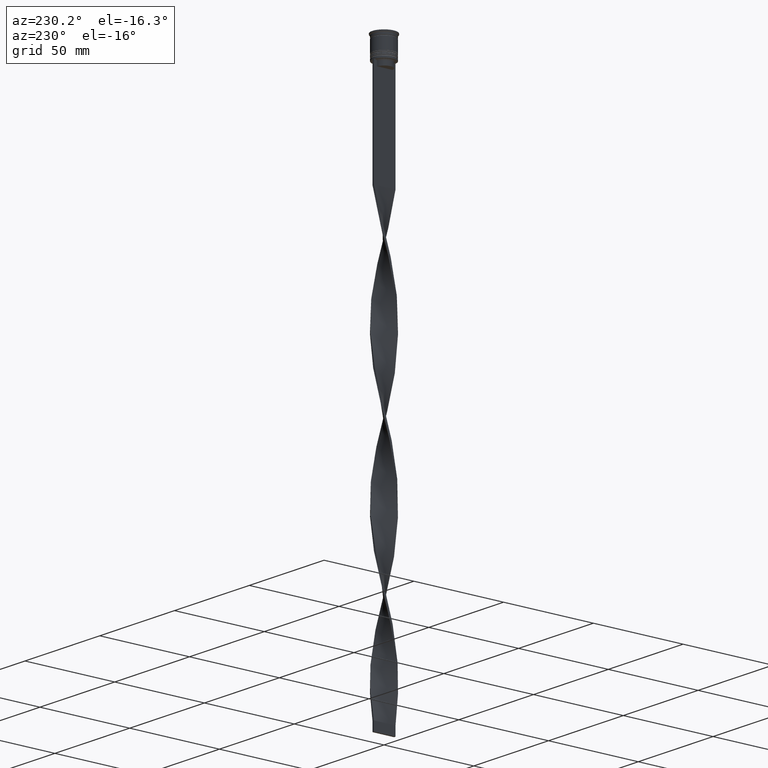
[diagram: clean part render]
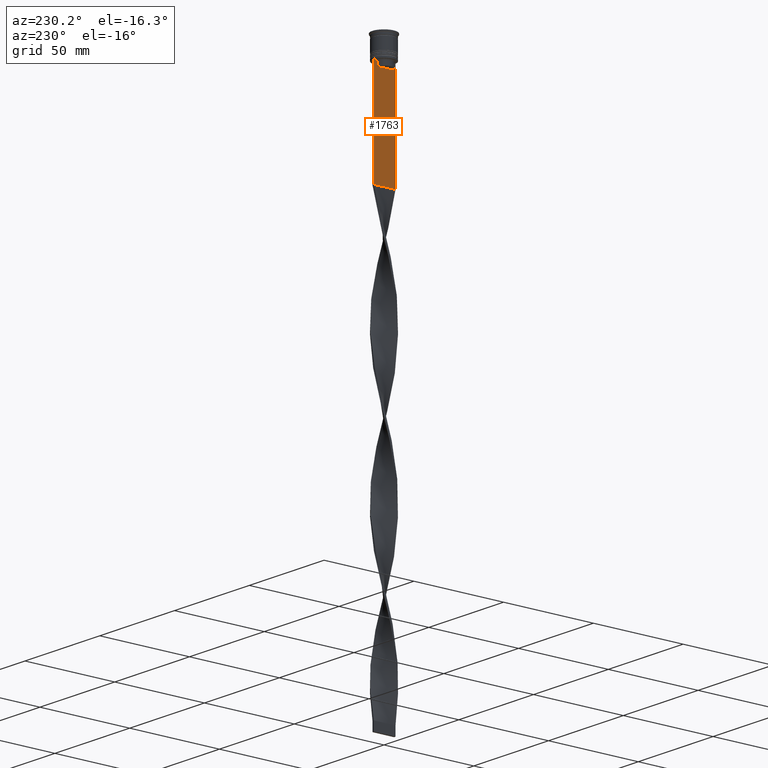
[diagram: same view with one face highlighted and labeled with its STEP entity id]
A machine part, auxiliary view. The second image highlights one B-rep face of the part: STEP entity #1763.
In plain terms, the highlighted planar face has unit normal (-1, 0, 0).
Its self-contained STEP definition (entity closure, byte-faithful):
#44 = LINE ( 'NONE', #3561, #3967 ) ;
#169 = ORIENTED_EDGE ( 'NONE', *, *, #1968, .F. ) ;
#179 = DIRECTION ( 'NONE',  ( 0.000000000000000000, 0.000000000000000000, 1.000000000000000000 ) ) ;
#218 = CARTESIAN_POINT ( 'NONE',  ( -0.4999999999999997780, -6.000000000000000000, -12.50000000000000000 ) ) ;
#278 = LINE ( 'NONE', #1231, #2730 ) ;
#308 = EDGE_CURVE ( 'NONE', #1701, #1156, #381, .T. ) ;
#310 = CARTESIAN_POINT ( 'NONE',  ( -0.4999999999999997780, -6.000000000000000000, -12.50000000000000000 ) ) ;
#381 = LINE ( 'NONE', #2617, #583 ) ;
#383 = EDGE_CURVE ( 'NONE', #2780, #1393, #44, .T. ) ;
#396 = VECTOR ( 'NONE', #450, 1000.000000000000000 ) ;
#429 = LINE ( 'NONE', #1076, #396 ) ;
#450 = DIRECTION ( 'NONE',  ( 0.000000000000000000, 1.000000000000000000, 0.000000000000000000 ) ) ;
#509 = EDGE_CURVE ( 'NONE', #1971, #3589, #1305, .T. ) ;
#583 = VECTOR ( 'NONE', #3873, 1000.000000000000000 ) ;
#663 = VECTOR ( 'NONE', #2156, 1000.000000000000000 ) ;
#666 = ORIENTED_EDGE ( 'NONE', *, *, #509, .T. ) ;
#734 = LINE ( 'NONE', #3536, #3659 ) ;
#925 = VECTOR ( 'NONE', #2134, 1000.000000000000000 ) ;
#1053 = VERTEX_POINT ( 'NONE', #2682 ) ;
#1076 = CARTESIAN_POINT ( 'NONE',  ( -0.4999999999999997780, -6.000000000000000000, -68.50000000000000000 ) ) ;
#1087 = LINE ( 'NONE', #3576, #2339 ) ;
#1156 = VERTEX_POINT ( 'NONE', #4012 ) ;
#1166 = LINE ( 'NONE', #2443, #925 ) ;
#1201 = EDGE_CURVE ( 'NONE', #3729, #2780, #1166, .T. ) ;
#1227 = ORIENTED_EDGE ( 'NONE', *, *, #3991, .F. ) ;
#1231 = CARTESIAN_POINT ( 'NONE',  ( -0.4999999999999997780, -6.000000000000000000, -0.4584054212077061097 ) ) ;
#1305 = LINE ( 'NONE', #1698, #2252 ) ;
#1362 = CARTESIAN_POINT ( 'NONE',  ( -0.4999999999999997780, -4.874423042781576676, -12.50000000000000000 ) ) ;
#1383 = CARTESIAN_POINT ( 'NONE',  ( -0.4999999999999997780, -4.539195586926424220, -12.83338928448044136 ) ) ;
#1393 = VERTEX_POINT ( 'NONE', #3882 ) ;
#1395 = CARTESIAN_POINT ( 'NONE',  ( -0.4999999999999997780, 6.000000000000000888, -68.50000000000000000 ) ) ;
#1524 = DIRECTION ( 'NONE',  ( 0.000000000000000000, 0.000000000000000000, -1.000000000000000000 ) ) ;
#1558 = ORIENTED_EDGE ( 'NONE', *, *, #308, .F. ) ;
#1628 = EDGE_CURVE ( 'NONE', #4087, #3589, #429, .T. ) ;
#1639 = ORIENTED_EDGE ( 'NONE', *, *, #1684, .F. ) ;
#1643 = ORIENTED_EDGE ( 'NONE', *, *, #1628, .F. ) ;
#1654 = CARTESIAN_POINT ( 'NONE',  ( -0.4999999999999997780, 4.371498598878878816, -13.00000000000000178 ) ) ;
#1684 = EDGE_CURVE ( 'NONE', #1053, #2898, #2769, .T. ) ;
#1698 = CARTESIAN_POINT ( 'NONE',  ( -0.4999999999999997780, 6.000000000000000888, -0.4584054212077061097 ) ) ;
#1701 = VERTEX_POINT ( 'NONE', #3919 ) ;
#1703 = CARTESIAN_POINT ( 'NONE',  ( -0.4999999999999997780, -6.000000000000000000, -12.50000000000000000 ) ) ;
#1715 = CARTESIAN_POINT ( 'NONE',  ( -0.4999999999999997780, -4.706831372970964544, -12.66671687695981596 ) ) ;
#1763 = ADVANCED_FACE ( 'NONE', ( #3355 ), #3033, .T. ) ;
#1834 = CARTESIAN_POINT ( 'NONE',  ( -0.4999999999999997780, -6.000000000000000000, -0.4584054212077061097 ) ) ;
#1879 = EDGE_CURVE ( 'NONE', #1971, #1701, #2389, .T. ) ;
#1892 = LINE ( 'NONE', #310, #1924 ) ;
#1894 = CARTESIAN_POINT ( 'NONE',  ( -0.4999999999999997780, 4.371498598878878816, -15.50000000000000000 ) ) ;
#1924 = VECTOR ( 'NONE', #1960, 1000.000000000000000 ) ;
#1960 = DIRECTION ( 'NONE',  ( 0.000000000000000000, -1.000000000000000000, 0.000000000000000000 ) ) ;
#1968 = EDGE_CURVE ( 'NONE', #4068, #4087, #278, .T. ) ;
#1971 = VERTEX_POINT ( 'NONE', #2805 ) ;
#1988 = CARTESIAN_POINT ( 'NONE',  ( -0.4999999999999997780, 4.539195634199897356, -12.83338923751318816 ) ) ;
#1995 = CARTESIAN_POINT ( 'NONE',  ( -0.4999999999999997780, -5.878775382679627626, -12.50000000000000000 ) ) ;
#2064 = ORIENTED_EDGE ( 'NONE', *, *, #3341, .F. ) ;
#2134 = DIRECTION ( 'NONE',  ( 0.000000000000000000, 0.000000000000000000, -1.000000000000000000 ) ) ;
#2156 = DIRECTION ( 'NONE',  ( 0.000000000000000000, -1.000000000000000000, 0.000000000000000000 ) ) ;
#2252 = VECTOR ( 'NONE', #2643, 1000.000000000000000 ) ;
#2339 = VECTOR ( 'NONE', #2587, 1000.000000000000000 ) ;
#2340 = CARTESIAN_POINT ( 'NONE',  ( -0.4999999999999997780, 4.371498598878878816, -13.00000000000000178 ) ) ;
#2389 = LINE ( 'NONE', #218, #663 ) ;
#2443 = CARTESIAN_POINT ( 'NONE',  ( -0.4999999999999997780, 4.371498598878878816, 0.000000000000000000 ) ) ;
#2467 = DIRECTION ( 'NONE',  ( -1.000000000000000000, 0.000000000000000000, 0.000000000000000000 ) ) ;
#2482 = CARTESIAN_POINT ( 'NONE',  ( -0.4999999999999997780, -4.874423042781576676, -12.50000000000000000 ) ) ;
#2513 = ORIENTED_EDGE ( 'NONE', *, *, #3540, .F. ) ;
#2587 = DIRECTION ( 'NONE',  ( 0.000000000000000000, -1.000000000000000000, 0.000000000000000000 ) ) ;
#2611 = CARTESIAN_POINT ( 'NONE',  ( -0.4999999999999997780, -6.000000000000000000, -68.50000000000000000 ) ) ;
#2617 = CARTESIAN_POINT ( 'NONE',  ( -0.4999999999999997780, -6.000000000000000000, -12.50000000000000000 ) ) ;
#2643 = DIRECTION ( 'NONE',  ( 0.000000000000000000, 0.000000000000000000, -1.000000000000000000 ) ) ;
#2682 = CARTESIAN_POINT ( 'NONE',  ( -0.4999999999999997780, -4.371498598878878816, -13.00000000000000178 ) ) ;
#2730 = VECTOR ( 'NONE', #1524, 1000.000000000000000 ) ;
#2767 = ORIENTED_EDGE ( 'NONE', *, *, #1879, .F. ) ;
#2769 = B_SPLINE_CURVE_WITH_KNOTS ( 'NONE', 3,
 ( #2996, #1383, #1715, #1362 ),
 .UNSPECIFIED., .F., .F.,
 ( 4, 4 ),
 ( 0.02089901220910806920, 0.02161421017310284978 ),
 .UNSPECIFIED. ) ;
#2780 = VERTEX_POINT ( 'NONE', #1894 ) ;
#2805 = CARTESIAN_POINT ( 'NONE',  ( -0.4999999999999997780, 6.000000000000001776, -12.50000000000000000 ) ) ;
#2898 = VERTEX_POINT ( 'NONE', #2482 ) ;
#2907 = CARTESIAN_POINT ( 'NONE',  ( -0.4999999999999997780, 4.706831415367290106, -12.66671683478478982 ) ) ;
#2996 = CARTESIAN_POINT ( 'NONE',  ( -0.4999999999999997780, -4.371498598878878816, -13.00000000000000178 ) ) ;
#3005 = ORIENTED_EDGE ( 'NONE', *, *, #383, .F. ) ;
#3033 = PLANE ( 'NONE',  #3055 ) ;
#3055 = AXIS2_PLACEMENT_3D ( 'NONE', #1834, #2467, #179 ) ;
#3060 = EDGE_CURVE ( 'NONE', #3276, #4068, #1892, .T. ) ;
#3276 = VERTEX_POINT ( 'NONE', #1995 ) ;
#3341 = EDGE_CURVE ( 'NONE', #1156, #3729, #3947, .T. ) ;
#3355 = FACE_OUTER_BOUND ( 'NONE', #3478, .T. ) ;
#3478 = EDGE_LOOP ( 'NONE', ( #2064, #1558, #2767, #666, #1643, #169, #3775, #2513, #1639, #1227, #3005, #3566 ) ) ;
#3495 = CARTESIAN_POINT ( 'NONE',  ( -0.4999999999999997780, 4.874423042781576676, -12.50000000000000000 ) ) ;
#3536 = CARTESIAN_POINT ( 'NONE',  ( -0.4999999999999997780, -4.371498598878878816, 0.000000000000000000 ) ) ;
#3540 = EDGE_CURVE ( 'NONE', #2898, #3276, #1087, .T. ) ;
#3556 = DIRECTION ( 'NONE',  ( -0.000000000000000000, -0.000000000000000000, 1.000000000000000000 ) ) ;
#3561 = CARTESIAN_POINT ( 'NONE',  ( -0.4999999999999997780, 4.399999999999999467, -15.50000000000000000 ) ) ;
#3566 = ORIENTED_EDGE ( 'NONE', *, *, #1201, .F. ) ;
#3576 = CARTESIAN_POINT ( 'NONE',  ( -0.4999999999999997780, -6.000000000000000000, -12.50000000000000000 ) ) ;
#3589 = VERTEX_POINT ( 'NONE', #1395 ) ;
#3659 = VECTOR ( 'NONE', #3556, 1000.000000000000000 ) ;
#3729 = VERTEX_POINT ( 'NONE', #2340 ) ;
#3775 = ORIENTED_EDGE ( 'NONE', *, *, #3060, .F. ) ;
#3853 = DIRECTION ( 'NONE',  ( 0.000000000000000000, -1.000000000000000000, 0.000000000000000000 ) ) ;
#3873 = DIRECTION ( 'NONE',  ( 0.000000000000000000, -1.000000000000000000, 0.000000000000000000 ) ) ;
#3882 = CARTESIAN_POINT ( 'NONE',  ( -0.4999999999999997780, -4.371498598878878816, -15.50000000000000000 ) ) ;
#3919 = CARTESIAN_POINT ( 'NONE',  ( -0.4999999999999997780, 5.878775382679627626, -12.50000000000000000 ) ) ;
#3947 = B_SPLINE_CURVE_WITH_KNOTS ( 'NONE', 3,
 ( #3495, #2907, #1988, #1654 ),
 .UNSPECIFIED., .F., .F.,
 ( 4, 4 ),
 ( 0.008336552452178418518, 0.009045730124312837891 ),
 .UNSPECIFIED. ) ;
#3967 = VECTOR ( 'NONE', #3853, 1000.000000000000000 ) ;
#3991 = EDGE_CURVE ( 'NONE', #1393, #1053, #734, .T. ) ;
#4012 = CARTESIAN_POINT ( 'NONE',  ( -0.4999999999999997780, 4.874423042781576676, -12.50000000000000000 ) ) ;
#4068 = VERTEX_POINT ( 'NONE', #1703 ) ;
#4087 = VERTEX_POINT ( 'NONE', #2611 ) ;